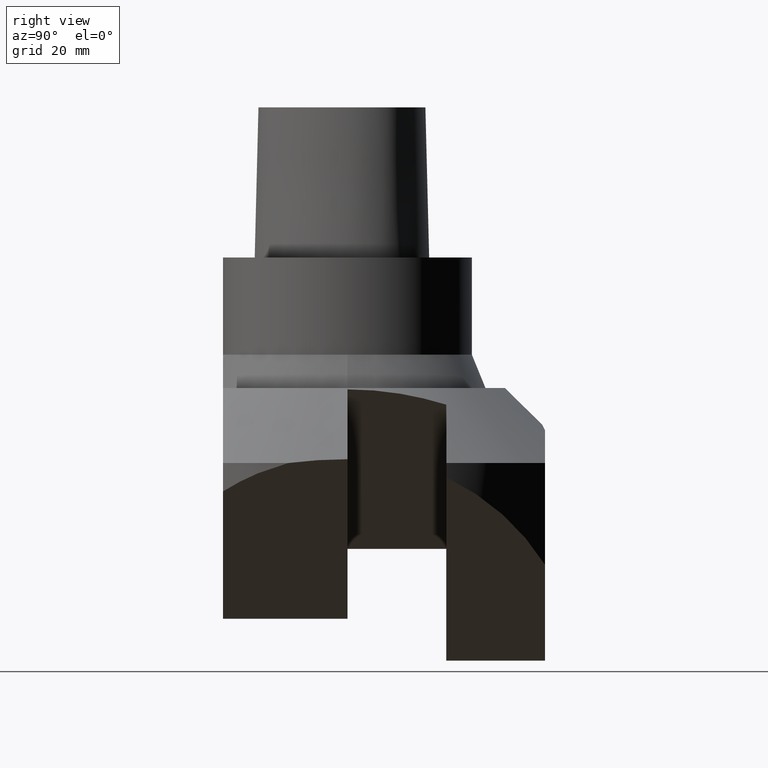
[diagram: clean part render]
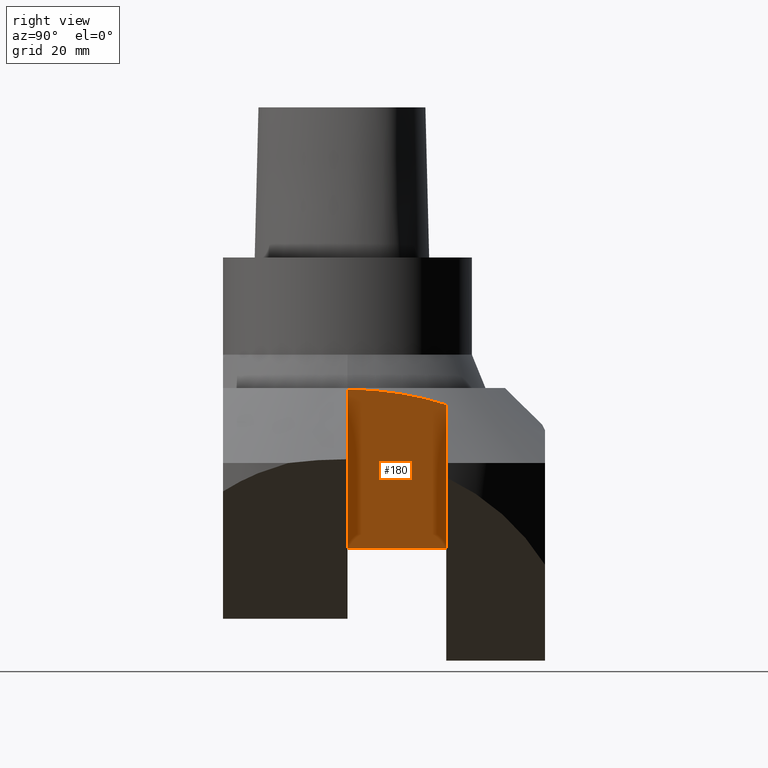
[diagram: same view with one face highlighted and labeled with its STEP entity id]
A machine part, right view. The second image highlights one B-rep face of the part: STEP entity #180.
In plain terms, the highlighted planar face has unit normal (-0.7071, 0, 0.7071).
Its self-contained STEP definition (entity closure, byte-faithful):
#143=EDGE_CURVE('240[2]',#373,#374,#375,.F.);
#158=EDGE_CURVE('240[2]',#399,#377,#400,.T.);
#168=EDGE_CURVE('240[2]',#373,#399,#414,.T.);
#177=EDGE_CURVE('240[2]',#374,#427,#428,.F.);
#180=ADVANCED_FACE('240[2]',(#431),#432,.F.);
#206=EDGE_CURVE('240[2]',#427,#377,#465,.T.);
#373=VERTEX_POINT('',#834);
#374=VERTEX_POINT('',#835);
#375=B_SPLINE_CURVE_WITH_KNOTS('',2,(#836,#837,#838),.UNSPECIFIED.,.F.,.F.,(3,3),(985.061355170742,1019.57062740964),.UNSPECIFIED.);
#377=VERTEX_POINT('',#841);
#399=VERTEX_POINT('',#892);
#400=LINE('',#893,#894);
#414=LINE('',#917,#918);
#427=VERTEX_POINT('',#936);
#428=B_SPLINE_CURVE_WITH_KNOTS('',2,(#937,#938,#939),.UNSPECIFIED.,.F.,.F.,(3,3),(886.092693693866,924.547877226166),.UNSPECIFIED.);
#431=FACE_OUTER_BOUND('',#943,.T.);
#432=PLANE('',#944);
#465=LINE('',#993,#994);
#834=CARTESIAN_POINT('',(36.4863361191743,25.0,-37.2295461371124));
#835=CARTESIAN_POINT('',(39.2514158446309,13.365189959665,-34.4644664116558));
#836=CARTESIAN_POINT('',(39.2514158446309,13.365189959665,-34.4644664116558));
#837=CARTESIAN_POINT('',(38.2881515985033,19.1825949797702,-35.4277306577833));
#838=CARTESIAN_POINT('',(36.4863361191743,25.0,-37.2295461371124));
#841=CARTESIAN_POINT('',(5.96046332073976E-013,-4.5528294674354E-015,-73.7158822562863));
#892=CARTESIAN_POINT('',(6.00523080996661E-013,25.0,-73.7158822562863));
#893=CARTESIAN_POINT('',(5.95236766109468E-013,1.03731916055146E-015,-73.7158822562863));
#894=VECTOR('',#1347,100.0);
#917=CARTESIAN_POINT('',(52.6087445202795,25.0,-21.1071377360071));
#918=VECTOR('',#1352,100.0);
#936=CARTESIAN_POINT('',(40.3579409693491,-1.72424066370468E-014,-33.3579412869375));
#937=CARTESIAN_POINT('',(40.3579409693491,-1.72424066370468E-014,-33.3579412869375));
#938=CARTESIAN_POINT('',(40.3579409693491,6.68259497978929,-33.3579412869375));
#939=CARTESIAN_POINT('',(39.2514158446309,13.365189959665,-34.4644664116558));
#943=EDGE_LOOP('',(#1369,#1370,#1371,#1372,#1373));
#944=AXIS2_PLACEMENT_3D('',#1374,#1375,#1376);
#993=CARTESIAN_POINT('',(52.6087445202795,-1.06581410364015E-014,-21.1071377360071));
#994=VECTOR('',#1415,1.0);
#1347=DIRECTION('',(-1.83697019872103E-016,-1.0,6.12323399573677E-017));
#1352=DIRECTION('',(-0.707106781186545,8.65956056235487E-017,-0.70710678118655));
#1369=ORIENTED_EDGE('',*,*,#206,.T.);
#1370=ORIENTED_EDGE('',*,*,#158,.F.);
#1371=ORIENTED_EDGE('',*,*,#168,.F.);
#1372=ORIENTED_EDGE('',*,*,#143,.T.);
#1373=ORIENTED_EDGE('',*,*,#177,.T.);
#1374=CARTESIAN_POINT('',(52.6087445202795,25.0,-21.1071377360071));
#1375=DIRECTION('',(-0.70710678118655,1.73191211247099E-016,0.707106781186545));
#1376=DIRECTION('',(2.4492935982947E-016,1.0,0.0));
#1415=DIRECTION('',(-0.707106781186545,8.65956056235486E-017,-0.70710678118655));